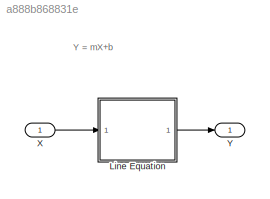
MODEL slx_a888b868831e
KIND model
CONFIG AbsTol = auto
CONFIG EnableMultiTasking = off
CONFIG FixedStep = auto
CONFIG MaxStep = auto
CONFIG MinStep = auto
CONFIG RelTol = 1e-3
CONFIG SampleTimeConstraint = Unconstrained
CONFIG SolverName = VariableStepAuto
CONFIG StartTime = 0.0
CONFIG StopTime = 10.0
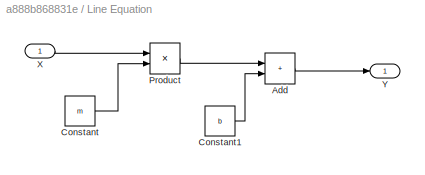
BLOCK [SubSystem] Line Equation
  Ports = [1, 1]
  RequestExecContextInheritance = off
BLOCK [Sum] Line Equation/Add
  IconShape = rectangular
  Ports = [2, 1]
BLOCK [Constant] Line Equation/Constant
  Value = m
BLOCK [Constant] Line Equation/Constant1
  Value = b
BLOCK [Product] Line Equation/Product
  Ports = [2, 1]
BLOCK [Inport] Line Equation/X
BLOCK [Outport] Line Equation/Y
BLOCK [Inport] X
BLOCK [Outport] Y
ANNOTATION (root): Y = mX+b
LINE Line Equation/Add:1 -> Line Equation/Y:1
LINE Line Equation/Constant1:1 -> Line Equation/Add:2
LINE Line Equation/Constant:1 -> Line Equation/Product:2
LINE Line Equation/Product:1 -> Line Equation/Add:1
LINE Line Equation/X:1 -> Line Equation/Product:1
LINE Line Equation:1 -> Y:1
LINE X:1 -> Line Equation:1
